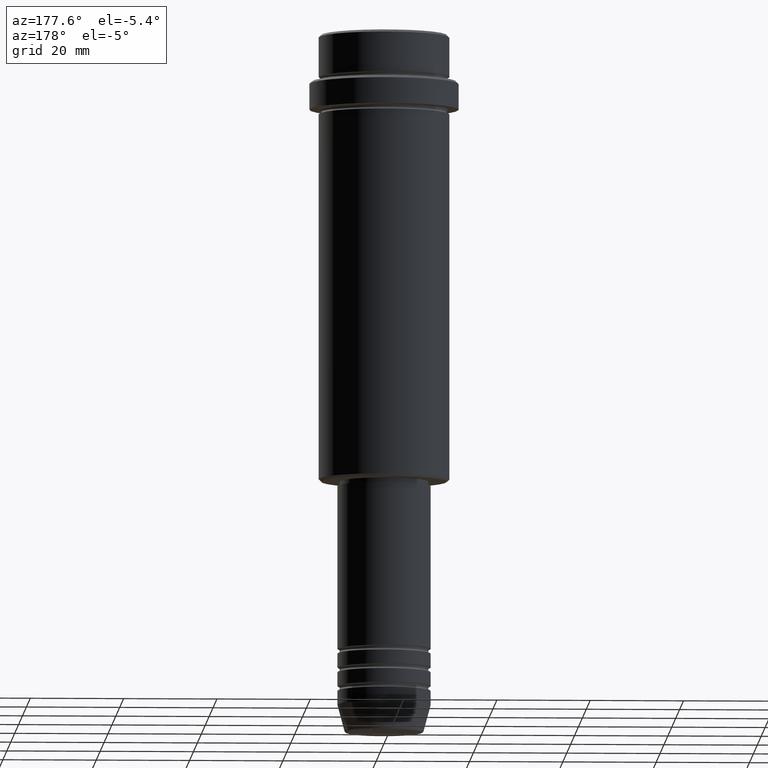
[diagram: clean part render]
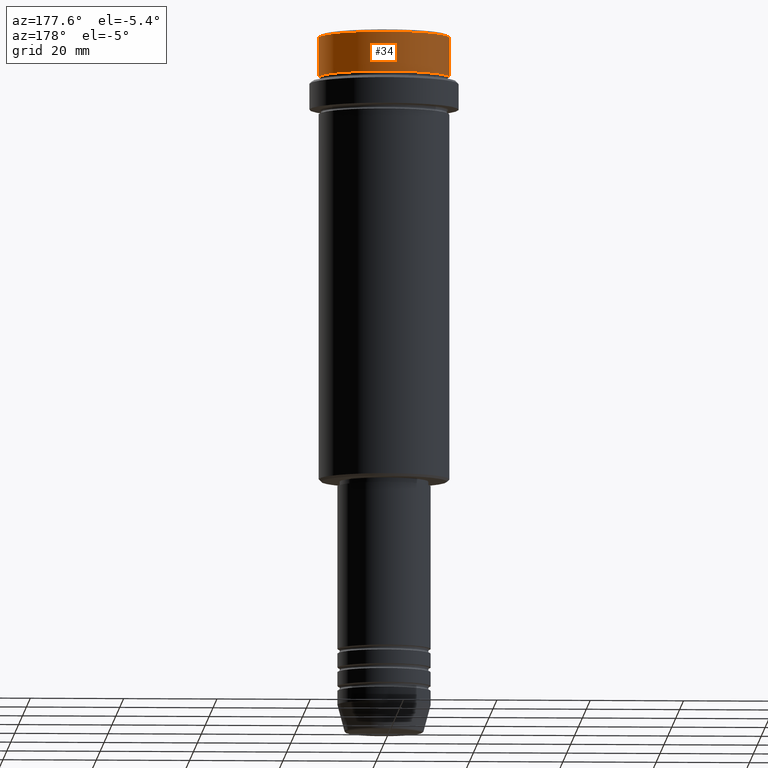
[diagram: same view with one face highlighted and labeled with its STEP entity id]
A machine part, auxiliary view. The second image highlights one B-rep face of the part: STEP entity #34.
In plain terms, the highlighted cylindrical surface (partial cylindrical patch) has radius 14 mm, axis along (-0, -0, 1).
Its self-contained STEP definition (entity closure, byte-faithful):
#34 = ADVANCED_FACE ( 'NONE', ( #1183 ), #387, .T. ) ;
#83 = DIRECTION ( 'NONE',  ( 0.000000000000000000, 0.000000000000000000, -1.000000000000000000 ) ) ;
#139 = EDGE_CURVE ( 'NONE', #1108, #304, #750, .T. ) ;
#212 = DIRECTION ( 'NONE',  ( -0.000000000000000000, -0.000000000000000000, 1.000000000000000000 ) ) ;
#280 = ORIENTED_EDGE ( 'NONE', *, *, #1261, .T. ) ;
#290 = CARTESIAN_POINT ( 'NONE',  ( -13.99999999999998401, 1.714505518806293060E-15, -8.999999999999998224 ) ) ;
#304 = VERTEX_POINT ( 'NONE', #290 ) ;
#326 = CARTESIAN_POINT ( 'NONE',  ( 13.99999999999998401, 0.000000000000000000, -8.999999999999998224 ) ) ;
#360 = AXIS2_PLACEMENT_3D ( 'NONE', #1065, #83, #1318 ) ;
#366 = CARTESIAN_POINT ( 'NONE',  ( 0.000000000000000000, 0.000000000000000000, -8.999999999999998224 ) ) ;
#370 = VERTEX_POINT ( 'NONE', #684 ) ;
#387 = CYLINDRICAL_SURFACE ( 'NONE', #823, 13.99999999999999112 ) ;
#425 = CARTESIAN_POINT ( 'NONE',  ( 13.99999999999999112, 0.000000000000000000, -0.5000000000000125455 ) ) ;
#442 = EDGE_CURVE ( 'NONE', #1108, #1152, #744, .T. ) ;
#454 = CIRCLE ( 'NONE', #360, 13.99999999999999112 ) ;
#524 = CARTESIAN_POINT ( 'NONE',  ( 0.000000000000000000, 0.000000000000000000, 0.000000000000000000 ) ) ;
#553 = EDGE_LOOP ( 'NONE', ( #1002, #763, #280, #949 ) ) ;
#630 = VECTOR ( 'NONE', #1287, 1000.000000000000000 ) ;
#684 = CARTESIAN_POINT ( 'NONE',  ( -13.99999999999999112, 1.714505518806293455E-15, -0.5000000000000125455 ) ) ;
#735 = CARTESIAN_POINT ( 'NONE',  ( 13.99999999999999112, 0.000000000000000000, 0.000000000000000000 ) ) ;
#744 = LINE ( 'NONE', #735, #630 ) ;
#750 = CIRCLE ( 'NONE', #937, 13.99999999999998401 ) ;
#763 = ORIENTED_EDGE ( 'NONE', *, *, #1391, .T. ) ;
#765 = CARTESIAN_POINT ( 'NONE',  ( -13.99999999999999112, 1.714505518806293455E-15, 0.000000000000000000 ) ) ;
#823 = AXIS2_PLACEMENT_3D ( 'NONE', #524, #952, #975 ) ;
#837 = DIRECTION ( 'NONE',  ( 1.000000000000000000, 0.000000000000000000, 0.000000000000000000 ) ) ;
#937 = AXIS2_PLACEMENT_3D ( 'NONE', #366, #1142, #837 ) ;
#949 = ORIENTED_EDGE ( 'NONE', *, *, #442, .F. ) ;
#952 = DIRECTION ( 'NONE',  ( -0.000000000000000000, -0.000000000000000000, 1.000000000000000000 ) ) ;
#975 = DIRECTION ( 'NONE',  ( 1.000000000000000000, 0.000000000000000000, 0.000000000000000000 ) ) ;
#1002 = ORIENTED_EDGE ( 'NONE', *, *, #139, .T. ) ;
#1065 = CARTESIAN_POINT ( 'NONE',  ( 0.000000000000000000, 0.000000000000000000, -0.5000000000000125455 ) ) ;
#1108 = VERTEX_POINT ( 'NONE', #326 ) ;
#1142 = DIRECTION ( 'NONE',  ( -0.000000000000000000, -0.000000000000000000, 1.000000000000000000 ) ) ;
#1152 = VERTEX_POINT ( 'NONE', #425 ) ;
#1183 = FACE_OUTER_BOUND ( 'NONE', #553, .T. ) ;
#1261 = EDGE_CURVE ( 'NONE', #370, #1152, #454, .T. ) ;
#1287 = DIRECTION ( 'NONE',  ( -0.000000000000000000, -0.000000000000000000, 1.000000000000000000 ) ) ;
#1318 = DIRECTION ( 'NONE',  ( 1.000000000000000000, 0.000000000000000000, 0.000000000000000000 ) ) ;
#1391 = EDGE_CURVE ( 'NONE', #304, #370, #1412, .T. ) ;
#1398 = VECTOR ( 'NONE', #212, 1000.000000000000000 ) ;
#1412 = LINE ( 'NONE', #765, #1398 ) ;